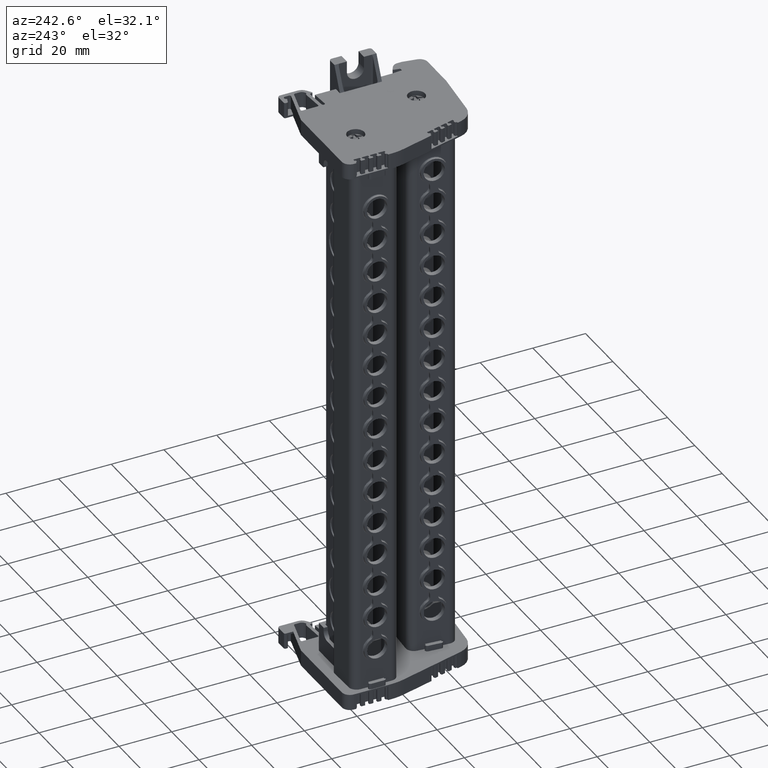
[diagram: clean part render]
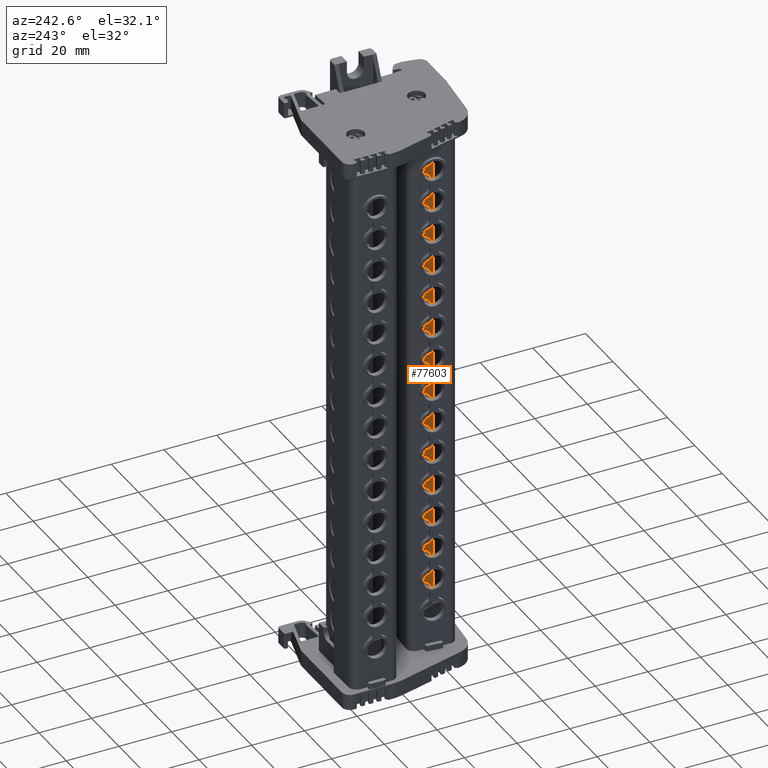
[diagram: same view with one face highlighted and labeled with its STEP entity id]
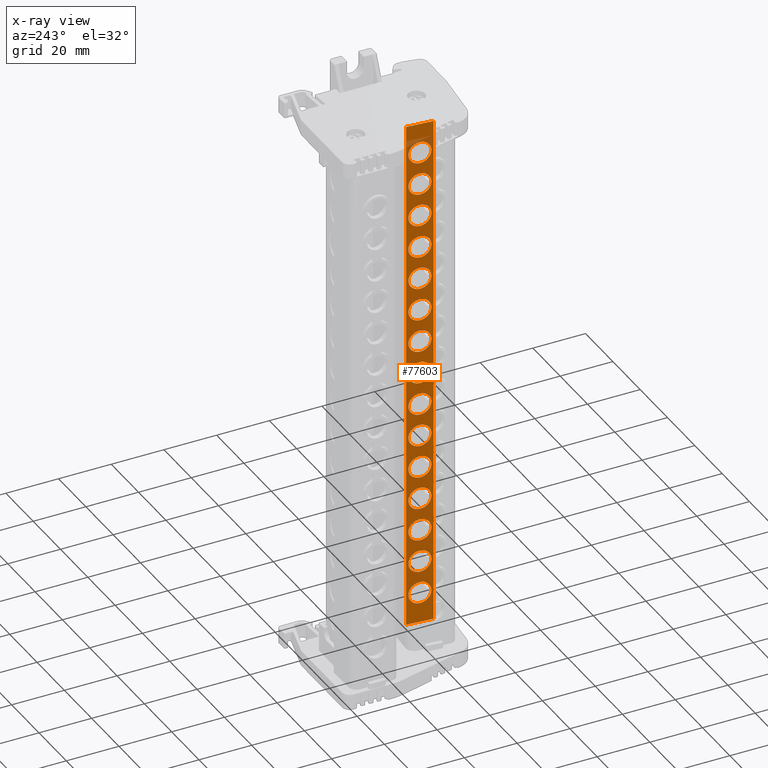
[diagram: x-ray of the same camera — body ghosted, the highlighted face saturated]
A machine part, auxiliary view. The second image highlights one B-rep face of the part: STEP entity #77603.
The next image is the same camera in x-ray: the body ghosted, the highlighted face saturated — about 3% of this face is hidden behind the body in this view.
In plain terms, the highlighted planar face has unit normal (0.9962, -0.0872, -0).
Its self-contained STEP definition (entity closure, byte-faithful):
#851 = DIRECTION ( 'NONE',  ( -0.9961946980917439900, 0.08715574274767584600, 8.512968526730301800E-014 ) ) ;
#858 = CARTESIAN_POINT ( 'NONE',  ( 1892.011210104553400, 769.9596501772075500, 158.6204558807427000 ) ) ;
#864 = DIRECTION ( 'NONE',  ( 0.08715574274769526100, 0.9961946980917422100, 0.0000000000000000000 ) ) ;
#869 = CARTESIAN_POINT ( 'NONE',  ( 1892.011210104553100, 769.9596501772080000, 146.1204558807425300 ) ) ;
#879 = DIRECTION ( 'NONE',  ( 0.08715574274774796900, 0.9961946980917377700, 0.0000000000000000000 ) ) ;
#891 = DIRECTION ( 'NONE',  ( -0.9961946980917370000, 0.08715574274775604600, 5.868139483058593900E-014 ) ) ;
#904 = DIRECTION ( 'NONE',  ( 0.08715574274764256700, 0.9961946980917468800, 0.0000000000000000000 ) ) ;
#909 = CARTESIAN_POINT ( 'NONE',  ( 1892.011210104551300, 769.9596501772096000, 121.1204558807426100 ) ) ;
#922 = DIRECTION ( 'NONE',  ( -0.9961946980917488800, 0.08715574274761968300, 2.991917881100227800E-014 ) ) ;
#953 = CARTESIAN_POINT ( 'NONE',  ( 1892.011210104554300, 769.9596501772067500, 171.1204558807428700 ) ) ;
#962 = DIRECTION ( 'NONE',  ( -0.9961946980917419900, 0.08715574274769873100, 8.397272247587224700E-014 ) ) ;
#965 = DIRECTION ( 'NONE',  ( 0.08715574274769526100, 0.9961946980917422100, 0.0000000000000000000 ) ) ;
#1645 = DIRECTION ( 'NONE',  ( 0.08715574274758757000, 0.9961946980917516500, 0.0000000000000000000 ) ) ;
#1655 = CARTESIAN_POINT ( 'NONE',  ( 1892.011210104550400, 769.9596501772101600, 108.6204558807428500 ) ) ;
#1659 = DIRECTION ( 'NONE',  ( -0.9961946980917513200, 0.08715574274759219100, 4.627851165704857700E-015 ) ) ;
#1732 = CARTESIAN_POINT ( 'NONE',  ( 1892.011210104548400, 769.9596501772125500, 58.62045588074259700 ) ) ;
#1768 = DIRECTION ( 'NONE',  ( -0.9961946980917422100, 0.08715574274769757900, 5.752443203915197600E-014 ) ) ;
#1771 = DIRECTION ( 'NONE',  ( 0.08715574274769757900, 0.9961946980917421000, 0.0000000000000000000 ) ) ;
#1776 = DIRECTION ( 'NONE',  ( -0.9961946980917444300, 0.08715574274767237700, 8.281575968444651300E-014 ) ) ;
#1779 = DIRECTION ( 'NONE',  ( 0.08715574274769297100, 0.9961946980917425500, 0.0000000000000000000 ) ) ;
#1781 = DIRECTION ( 'NONE',  ( -0.9961946980917439900, 0.08715574274767698400, 5.752443203915409600E-014 ) ) ;
#1787 = CARTESIAN_POINT ( 'NONE',  ( 1892.011210104547400, 769.9596501772132300, 46.12045588074286000 ) ) ;
#1791 = CARTESIAN_POINT ( 'NONE',  ( 1892.011210104549900, 769.9596501772109600, 96.12045588074269600 ) ) ;
#1798 = DIRECTION ( 'NONE',  ( 0.08715574274769526100, 0.9961946980917422100, 0.0000000000000000000 ) ) ;
#1850 = CARTESIAN_POINT ( 'NONE',  ( 1892.011210104546500, 769.9596501772147100, 21.12045588074250800 ) ) ;
#1851 = CARTESIAN_POINT ( 'NONE',  ( 1892.011210104547000, 769.9596501772139200, 33.62045588074268200 ) ) ;
#1852 = DIRECTION ( 'NONE',  ( -0.9961946980917396600, 0.08715574274772623600, 5.752443203915639300E-014 ) ) ;
#1853 = DIRECTION ( 'NONE',  ( 0.08715574274769989600, 0.9961946980917419900, 0.0000000000000000000 ) ) ;
#1859 = DIRECTION ( 'NONE',  ( -0.9961946980917444300, 0.08715574274767122500, 8.397272247587154000E-014 ) ) ;
#1860 = DIRECTION ( 'NONE',  ( 0.08715574274769526100, 0.9961946980917422100, 0.0000000000000000000 ) ) ;
#1862 = DIRECTION ( 'NONE',  ( -0.9961946980917442100, 0.08715574274767468000, 5.521050645629773000E-014 ) ) ;
#1871 = CARTESIAN_POINT ( 'NONE',  ( 1892.011210104549500, 769.9596501772113000, 83.62045588074249700 ) ) ;
#1873 = DIRECTION ( 'NONE',  ( 0.08715574274769297100, 0.9961946980917425500, 0.0000000000000000000 ) ) ;
#1898 = DIRECTION ( 'NONE',  ( 0.08715574274769757900, 0.9961946980917421000, 0.0000000000000000000 ) ) ;
#1909 = CARTESIAN_POINT ( 'NONE',  ( 1892.011210104548800, 769.9596501772121000, 71.12045588074276700 ) ) ;
#1925 = DIRECTION ( 'NONE',  ( -0.9961946980917442100, 0.08715574274767352900, 5.752443203915397000E-014 ) ) ;
#2022 = DIRECTION ( 'NONE',  ( -0.9961946980917444300, 0.08715574274767237700, 3.107614160242974100E-014 ) ) ;
#2036 = DIRECTION ( 'NONE',  ( -0.9961946980917398800, 0.08715574274772511200, 5.752443203915297300E-014 ) ) ;
#2042 = CARTESIAN_POINT ( 'NONE',  ( 1892.011210104554500, 769.9596501772061900, 183.6204558807426100 ) ) ;
#2044 = DIRECTION ( 'NONE',  ( 0.08715574274769526100, 0.9961946980917422100, 0.0000000000000000000 ) ) ;
#2054 = DIRECTION ( 'NONE',  ( -0.9961946980917442100, 0.08715574274767468000, 5.752443203915222800E-014 ) ) ;
#2065 = DIRECTION ( 'NONE',  ( 0.08715574274769526100, 0.9961946980917422100, 0.0000000000000000000 ) ) ;
#2087 = CARTESIAN_POINT ( 'NONE',  ( 1892.011210104555200, 769.9596501772055000, 196.1204558807427800 ) ) ;
#2096 = CARTESIAN_POINT ( 'NONE',  ( 1892.011210104551800, 769.9596501772088000, 133.6204558807427800 ) ) ;
#2100 = DIRECTION ( 'NONE',  ( 0.08715574274774796900, 0.9961946980917377700, 0.0000000000000000000 ) ) ;
#2280 = VERTEX_POINT ( 'NONE', #88000 ) ;
#2291 = VERTEX_POINT ( 'NONE', #87984 ) ;
#2691 = VERTEX_POINT ( 'NONE', #88177 ) ;
#2697 = VERTEX_POINT ( 'NONE', #88182 ) ;
#9658 = AXIS2_PLACEMENT_3D ( 'NONE', #15550, #15534, #15567 ) ;
#9664 = CIRCLE ( 'NONE', #9673, 4.181738299785991800 ) ;
#9673 = AXIS2_PLACEMENT_3D ( 'NONE', #14392, #14401, #14437 ) ;
#9681 = CIRCLE ( 'NONE', #9692, 4.181738299786011300 ) ;
#9685 = CIRCLE ( 'NONE', #9702, 4.181738299786030000 ) ;
#9687 = CIRCLE ( 'NONE', #9712, 4.181738299786030000 ) ;
#9692 = AXIS2_PLACEMENT_3D ( 'NONE', #14446, #14457, #14424 ) ;
#9702 = AXIS2_PLACEMENT_3D ( 'NONE', #15589, #15541, #15578 ) ;
#9705 = CIRCLE ( 'NONE', #9658, 4.181738299786121400 ) ;
#9709 = CIRCLE ( 'NONE', #9710, 4.181738299785789300 ) ;
#9710 = AXIS2_PLACEMENT_3D ( 'NONE', #15582, #15543, #15547 ) ;
#9712 = AXIS2_PLACEMENT_3D ( 'NONE', #15573, #15533, #15548 ) ;
#9721 = AXIS2_PLACEMENT_3D ( 'NONE', #14530, #14560, #14492 ) ;
#9732 = CIRCLE ( 'NONE', #9780, 4.181738299786121400 ) ;
#9733 = AXIS2_PLACEMENT_3D ( 'NONE', #14685, #14668, #14680 ) ;
#9736 = CIRCLE ( 'NONE', #9800, 4.181738299786011300 ) ;
#9749 = CIRCLE ( 'NONE', #9760, 4.181738299785900300 ) ;
#9760 = AXIS2_PLACEMENT_3D ( 'NONE', #14715, #14717, #14721 ) ;
#9769 = CIRCLE ( 'NONE', #9733, 4.181738299786011300 ) ;
#9780 = AXIS2_PLACEMENT_3D ( 'NONE', #14603, #14637, #14565 ) ;
#9794 = CIRCLE ( 'NONE', #9721, 4.181738299786083200 ) ;
#9800 = AXIS2_PLACEMENT_3D ( 'NONE', #14683, #14670, #14672 ) ;
#9808 = CIRCLE ( 'NONE', #9897, 4.181738299786011300 ) ;
#9812 = CIRCLE ( 'NONE', #9877, 4.181738299786011300 ) ;
#9823 = CIRCLE ( 'NONE', #9898, 4.181738299785900300 ) ;
#9877 = AXIS2_PLACEMENT_3D ( 'NONE', #14972, #14977, #14995 ) ;
#9897 = AXIS2_PLACEMENT_3D ( 'NONE', #14969, #15042, #15029 ) ;
#9898 = AXIS2_PLACEMENT_3D ( 'NONE', #14933, #14883, #14911 ) ;
#9971 = CIRCLE ( 'NONE', #10006, 4.181738299786011300 ) ;
#10000 = VECTOR ( 'NONE', #15190, 1000.000000000000000 ) ;
#10006 = AXIS2_PLACEMENT_3D ( 'NONE', #15068, #15073, #15124 ) ;
#14392 = CARTESIAN_POINT ( 'NONE',  ( 1892.011210104551300, 769.9596501772096000, 121.1204558807426100 ) ) ;
#14401 = DIRECTION ( 'NONE',  ( -0.9961946980917488800, 0.08715574274761968300, 2.991917881100227800E-014 ) ) ;
#14424 = DIRECTION ( 'NONE',  ( 0.08715574274769526100, 0.9961946980917422100, 0.0000000000000000000 ) ) ;
#14437 = DIRECTION ( 'NONE',  ( 0.08715574274764256700, 0.9961946980917468800, 0.0000000000000000000 ) ) ;
#14446 = CARTESIAN_POINT ( 'NONE',  ( 1892.011210104547400, 769.9596501772132300, 46.12045588074286000 ) ) ;
#14457 = DIRECTION ( 'NONE',  ( -0.9961946980917422100, 0.08715574274769757900, 5.752443203915197600E-014 ) ) ;
#14492 = DIRECTION ( 'NONE',  ( 0.08715574274758757000, 0.9961946980917516500, 0.0000000000000000000 ) ) ;
#14530 = CARTESIAN_POINT ( 'NONE',  ( 1892.011210104550400, 769.9596501772101600, 108.6204558807428500 ) ) ;
#14560 = DIRECTION ( 'NONE',  ( -0.9961946980917513200, 0.08715574274759219100, 4.627851165704857700E-015 ) ) ;
#14565 = DIRECTION ( 'NONE',  ( 0.08715574274769297100, 0.9961946980917425500, 0.0000000000000000000 ) ) ;
#14603 = CARTESIAN_POINT ( 'NONE',  ( 1892.011210104549500, 769.9596501772113000, 83.62045588074249700 ) ) ;
#14637 = DIRECTION ( 'NONE',  ( -0.9961946980917444300, 0.08715574274767122500, 8.397272247587154000E-014 ) ) ;
#14668 = DIRECTION ( 'NONE',  ( -0.9961946980917439900, 0.08715574274767584600, 8.512968526730301800E-014 ) ) ;
#14670 = DIRECTION ( 'NONE',  ( -0.9961946980917419900, 0.08715574274769873100, 8.397272247587224700E-014 ) ) ;
#14672 = DIRECTION ( 'NONE',  ( 0.08715574274769526100, 0.9961946980917422100, 0.0000000000000000000 ) ) ;
#14680 = DIRECTION ( 'NONE',  ( 0.08715574274769526100, 0.9961946980917422100, 0.0000000000000000000 ) ) ;
#14683 = CARTESIAN_POINT ( 'NONE',  ( 1892.011210104554300, 769.9596501772067500, 171.1204558807428700 ) ) ;
#14685 = CARTESIAN_POINT ( 'NONE',  ( 1892.011210104553400, 769.9596501772075500, 158.6204558807427000 ) ) ;
#14715 = CARTESIAN_POINT ( 'NONE',  ( 1892.011210104549900, 769.9596501772109600, 96.12045588074269600 ) ) ;
#14717 = DIRECTION ( 'NONE',  ( -0.9961946980917444300, 0.08715574274767237700, 8.281575968444651300E-014 ) ) ;
#14721 = DIRECTION ( 'NONE',  ( 0.08715574274769757900, 0.9961946980917421000, 0.0000000000000000000 ) ) ;
#14883 = DIRECTION ( 'NONE',  ( -0.9961946980917442100, 0.08715574274767352900, 5.752443203915397000E-014 ) ) ;
#14911 = DIRECTION ( 'NONE',  ( 0.08715574274769757900, 0.9961946980917421000, 0.0000000000000000000 ) ) ;
#14933 = CARTESIAN_POINT ( 'NONE',  ( 1892.011210104548800, 769.9596501772121000, 71.12045588074276700 ) ) ;
#14969 = CARTESIAN_POINT ( 'NONE',  ( 1892.011210104551800, 769.9596501772088000, 133.6204558807427800 ) ) ;
#14972 = CARTESIAN_POINT ( 'NONE',  ( 1892.011210104547000, 769.9596501772139200, 33.62045588074268200 ) ) ;
#14977 = DIRECTION ( 'NONE',  ( -0.9961946980917442100, 0.08715574274767468000, 5.521050645629773000E-014 ) ) ;
#14995 = DIRECTION ( 'NONE',  ( 0.08715574274769526100, 0.9961946980917422100, 0.0000000000000000000 ) ) ;
#15029 = DIRECTION ( 'NONE',  ( 0.08715574274769526100, 0.9961946980917422100, 0.0000000000000000000 ) ) ;
#15042 = DIRECTION ( 'NONE',  ( -0.9961946980917444300, 0.08715574274767237700, 3.107614160242974100E-014 ) ) ;
#15068 = CARTESIAN_POINT ( 'NONE',  ( 1892.011210104554500, 769.9596501772061900, 183.6204558807426100 ) ) ;
#15073 = DIRECTION ( 'NONE',  ( -0.9961946980917442100, 0.08715574274767468000, 5.752443203915222800E-014 ) ) ;
#15124 = DIRECTION ( 'NONE',  ( 0.08715574274769526100, 0.9961946980917422100, 0.0000000000000000000 ) ) ;
#15190 = DIRECTION ( 'NONE',  ( 0.08715574274764273400, 0.9961946980917468800, 0.0000000000000000000 ) ) ;
#15192 = CARTESIAN_POINT ( 'NONE',  ( 1892.447860375710700, 774.9505856146529400, 9.520455880742240100 ) ) ;
#15197 = LINE ( 'NONE', #15192, #10000 ) ;
#15533 = DIRECTION ( 'NONE',  ( -0.9961946980917398800, 0.08715574274772511200, 5.752443203915297300E-014 ) ) ;
#15534 = DIRECTION ( 'NONE',  ( -0.9961946980917439900, 0.08715574274767698400, 5.752443203915409600E-014 ) ) ;
#15541 = DIRECTION ( 'NONE',  ( -0.9961946980917370000, 0.08715574274775604600, 5.868139483058593900E-014 ) ) ;
#15543 = DIRECTION ( 'NONE',  ( -0.9961946980917396600, 0.08715574274772623600, 5.752443203915639300E-014 ) ) ;
#15547 = DIRECTION ( 'NONE',  ( 0.08715574274769989600, 0.9961946980917419900, 0.0000000000000000000 ) ) ;
#15548 = DIRECTION ( 'NONE',  ( 0.08715574274774796900, 0.9961946980917377700, 0.0000000000000000000 ) ) ;
#15550 = CARTESIAN_POINT ( 'NONE',  ( 1892.011210104548400, 769.9596501772125500, 58.62045588074259700 ) ) ;
#15567 = DIRECTION ( 'NONE',  ( 0.08715574274769297100, 0.9961946980917425500, 0.0000000000000000000 ) ) ;
#15573 = CARTESIAN_POINT ( 'NONE',  ( 1892.011210104555200, 769.9596501772055000, 196.1204558807427800 ) ) ;
#15578 = DIRECTION ( 'NONE',  ( 0.08715574274774796900, 0.9961946980917377700, 0.0000000000000000000 ) ) ;
#15582 = CARTESIAN_POINT ( 'NONE',  ( 1892.011210104546500, 769.9596501772147100, 21.12045588074250800 ) ) ;
#15589 = CARTESIAN_POINT ( 'NONE',  ( 1892.011210104553100, 769.9596501772080000, 146.1204558807425300 ) ) ;
#17755 = CARTESIAN_POINT ( 'NONE',  ( 1891.646747597052600, 765.7938246541600600, 33.62045588074268900 ) ) ;
#17759 = CARTESIAN_POINT ( 'NONE',  ( 1891.646747597056400, 765.7938246541559700, 108.6204558807428500 ) ) ;
#17767 = CARTESIAN_POINT ( 'NONE',  ( 1891.646747597051900, 765.7938246541608600, 21.12045588074251200 ) ) ;
#17776 = CARTESIAN_POINT ( 'NONE',  ( 1892.375672612041200, 774.1254757002684500, 21.12045588074250800 ) ) ;
#17777 = CARTESIAN_POINT ( 'NONE',  ( 1892.375672612041900, 774.1254757002675400, 46.12045588074286000 ) ) ;
#17780 = CARTESIAN_POINT ( 'NONE',  ( 1891.646747597054400, 765.7938246541582400, 71.12045588074278200 ) ) ;
#17782 = CARTESIAN_POINT ( 'NONE',  ( 1892.375672612042500, 774.1254757002664100, 58.62045588074259700 ) ) ;
#17790 = CARTESIAN_POINT ( 'NONE',  ( 1891.646747597053900, 765.7938246541584700, 58.62045588074260400 ) ) ;
#17808 = CARTESIAN_POINT ( 'NONE',  ( 1892.375672612044100, 774.1254757002640200, 108.6204558807428500 ) ) ;
#17813 = CARTESIAN_POINT ( 'NONE',  ( 1891.646747597055500, 765.7938246541569900, 96.12045588074269600 ) ) ;
#17815 = CARTESIAN_POINT ( 'NONE',  ( 1891.646747597060500, 765.7938246541514200, 196.1204558807427800 ) ) ;
#17820 = CARTESIAN_POINT ( 'NONE',  ( 1891.646747597060100, 765.7938246541521000, 183.6204558807426100 ) ) ;
#17822 = CARTESIAN_POINT ( 'NONE',  ( 1892.375672612048700, 774.1254757002607200, 171.1204558807428700 ) ) ;
#17828 = CARTESIAN_POINT ( 'NONE',  ( 1892.375672612048900, 774.1254757002602700, 183.6204558807426100 ) ) ;
#17830 = CARTESIAN_POINT ( 'NONE',  ( 1892.375672612044100, 774.1254757002649300, 96.12045588074269600 ) ) ;
#17833 = CARTESIAN_POINT ( 'NONE',  ( 1891.646747597057600, 765.7938246541548300, 133.6204558807427800 ) ) ;
#17836 = CARTESIAN_POINT ( 'NONE',  ( 1892.375672612041400, 774.1254757002680000, 33.62045588074268200 ) ) ;
#17840 = CARTESIAN_POINT ( 'NONE',  ( 1891.646747597058700, 765.7938246541540400, 146.1204558807425300 ) ) ;
#17843 = CARTESIAN_POINT ( 'NONE',  ( 1891.646747597055100, 765.7938246541572200, 83.62045588074251200 ) ) ;
#17845 = CARTESIAN_POINT ( 'NONE',  ( 1892.375672612047800, 774.1254757002616300, 158.6204558807427000 ) ) ;
#17846 = CARTESIAN_POINT ( 'NONE',  ( 1891.646747597059200, 765.7938246541535800, 158.6204558807427000 ) ) ;
#17853 = CARTESIAN_POINT ( 'NONE',  ( 1892.375672612047800, 774.1254757002617500, 146.1204558807425300 ) ) ;
#17856 = CARTESIAN_POINT ( 'NONE',  ( 1892.375672612045000, 774.1254757002633400, 121.1204558807426100 ) ) ;
#17872 = CARTESIAN_POINT ( 'NONE',  ( 1891.646747597053000, 765.7938246541592700, 46.12045588074286700 ) ) ;
#17880 = CARTESIAN_POINT ( 'NONE',  ( 1892.375672612043000, 774.1254757002662900, 71.12045588074276700 ) ) ;
#17889 = CARTESIAN_POINT ( 'NONE',  ( 1892.375672612043700, 774.1254757002651600, 83.62045588074248300 ) ) ;
#17891 = CARTESIAN_POINT ( 'NONE',  ( 1892.375672612045900, 774.1254757002624300, 133.6204558807427800 ) ) ;
#17956 = CARTESIAN_POINT ( 'NONE',  ( 1892.375672612049800, 774.1254757002597000, 196.1204558807427800 ) ) ;
#17958 = CARTESIAN_POINT ( 'NONE',  ( 1891.646747597057100, 765.7938246541556300, 121.1204558807426100 ) ) ;
#17971 = CARTESIAN_POINT ( 'NONE',  ( 1891.646747597060100, 765.7938246541527900, 171.1204558807428700 ) ) ;
#19429 = FACE_BOUND ( 'NONE', #83357, .T. ) ;
#19432 = FACE_BOUND ( 'NONE', #83368, .T. ) ;
#19434 = CARTESIAN_POINT ( 'NONE',  ( 1892.447860375712900, 774.9505856146527100, 52.56652525104543400 ) ) ;
#19436 = FACE_BOUND ( 'NONE', #83306, .T. ) ;
#19443 = PLANE ( 'NONE',  #24338 ) ;
#19451 = FACE_BOUND ( 'NONE', #79509, .T. ) ;
#19454 = FACE_BOUND ( 'NONE', #79538, .T. ) ;
#19456 = DIRECTION ( 'NONE',  ( 0.08715574274764273400, 0.9961946980917468800, 0.0000000000000000000 ) ) ;
#19458 = DIRECTION ( 'NONE',  ( 0.9961946980917468800, -0.08715574274764273400, -5.174051350537721800E-014 ) ) ;
#19485 = FACE_BOUND ( 'NONE', #79530, .T. ) ;
#19488 = FACE_BOUND ( 'NONE', #83298, .T. ) ;
#19493 = FACE_BOUND ( 'NONE', #79511, .T. ) ;
#19499 = FACE_BOUND ( 'NONE', #83348, .T. ) ;
#19537 = FACE_OUTER_BOUND ( 'NONE', #83349, .T. ) ;
#19540 = FACE_BOUND ( 'NONE', #83287, .T. ) ;
#19543 = FACE_BOUND ( 'NONE', #83309, .T. ) ;
#19547 = FACE_BOUND ( 'NONE', #83307, .T. ) ;
#19558 = FACE_BOUND ( 'NONE', #79481, .T. ) ;
#19564 = FACE_BOUND ( 'NONE', #79517, .T. ) ;
#19571 = FACE_BOUND ( 'NONE', #79523, .T. ) ;
#24338 = AXIS2_PLACEMENT_3D ( 'NONE', #19434, #19458, #19456 ) ;
#39646 = EDGE_CURVE ( 'NONE', #2280, #2691, #47983, .T. ) ;
#39649 = EDGE_CURVE ( 'NONE', #2697, #2291, #47998, .T. ) ;
#39657 = EDGE_CURVE ( 'NONE', #2697, #2691, #47985, .T. ) ;
#47973 = DIRECTION ( 'NONE',  ( 5.154362523060121200E-014, -4.509482884705591100E-015, 1.000000000000000000 ) ) ;
#47977 = CARTESIAN_POINT ( 'NONE',  ( 1892.446988818285500, 774.9406236676735500, 52.56652525104543400 ) ) ;
#47983 = LINE ( 'NONE', #47977, #64452 ) ;
#47985 = LINE ( 'NONE', #47987, #64469 ) ;
#47987 = CARTESIAN_POINT ( 'NONE',  ( 1891.575431390816400, 764.9786766867462100, 207.4986309168521600 ) ) ;
#47993 = CARTESIAN_POINT ( 'NONE',  ( 1891.575431390808500, 764.9786766867468900, 52.56652525104543400 ) ) ;
#47998 = LINE ( 'NONE', #47993, #64482 ) ;
#48008 = DIRECTION ( 'NONE',  ( -5.154362523060121200E-014, 4.509482884705591100E-015, -1.000000000000000000 ) ) ;
#48019 = DIRECTION ( 'NONE',  ( 0.08715574274664829300, 0.9961946980918338100, 0.0000000000000000000 ) ) ;
#53651 = VERTEX_POINT ( 'NONE', #17780 ) ;
#53654 = VERTEX_POINT ( 'NONE', #17776 ) ;
#53657 = VERTEX_POINT ( 'NONE', #17790 ) ;
#53666 = VERTEX_POINT ( 'NONE', #17755 ) ;
#53678 = VERTEX_POINT ( 'NONE', #17777 ) ;
#53686 = VERTEX_POINT ( 'NONE', #17759 ) ;
#53687 = VERTEX_POINT ( 'NONE', #17808 ) ;
#53693 = VERTEX_POINT ( 'NONE', #17782 ) ;
#53706 = VERTEX_POINT ( 'NONE', #17767 ) ;
#53727 = VERTEX_POINT ( 'NONE', #17836 ) ;
#53732 = VERTEX_POINT ( 'NONE', #17830 ) ;
#53739 = VERTEX_POINT ( 'NONE', #17820 ) ;
#53752 = VERTEX_POINT ( 'NONE', #17872 ) ;
#53753 = VERTEX_POINT ( 'NONE', #17843 ) ;
#53759 = VERTEX_POINT ( 'NONE', #17889 ) ;
#53760 = VERTEX_POINT ( 'NONE', #17880 ) ;
#53767 = VERTEX_POINT ( 'NONE', #17813 ) ;
#53776 = VERTEX_POINT ( 'NONE', #17840 ) ;
#53778 = VERTEX_POINT ( 'NONE', #17853 ) ;
#53779 = VERTEX_POINT ( 'NONE', #17822 ) ;
#53784 = VERTEX_POINT ( 'NONE', #17845 ) ;
#53786 = VERTEX_POINT ( 'NONE', #17833 ) ;
#53792 = VERTEX_POINT ( 'NONE', #17856 ) ;
#53800 = VERTEX_POINT ( 'NONE', #17815 ) ;
#53804 = VERTEX_POINT ( 'NONE', #17846 ) ;
#53823 = VERTEX_POINT ( 'NONE', #17828 ) ;
#53830 = VERTEX_POINT ( 'NONE', #17956 ) ;
#53833 = VERTEX_POINT ( 'NONE', #17958 ) ;
#53876 = VERTEX_POINT ( 'NONE', #17891 ) ;
#53880 = VERTEX_POINT ( 'NONE', #17971 ) ;
#56591 = ORIENTED_EDGE ( 'NONE', *, *, #67392, .F. ) ;
#60998 = ORIENTED_EDGE ( 'NONE', *, *, #67353, .F. ) ;
#61000 = ORIENTED_EDGE ( 'NONE', *, *, #39649, .F. ) ;
#61012 = ORIENTED_EDGE ( 'NONE', *, *, #72822, .F. ) ;
#61038 = ORIENTED_EDGE ( 'NONE', *, *, #67381, .F. ) ;
#61058 = ORIENTED_EDGE ( 'NONE', *, *, #72844, .F. ) ;
#61060 = ORIENTED_EDGE ( 'NONE', *, *, #72781, .F. ) ;
#61068 = ORIENTED_EDGE ( 'NONE', *, *, #39657, .T. ) ;
#61078 = ORIENTED_EDGE ( 'NONE', *, *, #67430, .F. ) ;
#61088 = ORIENTED_EDGE ( 'NONE', *, *, #67346, .F. ) ;
#61098 = ORIENTED_EDGE ( 'NONE', *, *, #67471, .F. ) ;
#61102 = ORIENTED_EDGE ( 'NONE', *, *, #39646, .F. ) ;
#61108 = ORIENTED_EDGE ( 'NONE', *, *, #67367, .F. ) ;
#61112 = ORIENTED_EDGE ( 'NONE', *, *, #72818, .F. ) ;
#61116 = ORIENTED_EDGE ( 'NONE', *, *, #67448, .F. ) ;
#61120 = ORIENTED_EDGE ( 'NONE', *, *, #72827, .F. ) ;
#61128 = ORIENTED_EDGE ( 'NONE', *, *, #67404, .F. ) ;
#61130 = ORIENTED_EDGE ( 'NONE', *, *, #72892, .F. ) ;
#61144 = ORIENTED_EDGE ( 'NONE', *, *, #67366, .F. ) ;
#61148 = ORIENTED_EDGE ( 'NONE', *, *, #67445, .F. ) ;
#61150 = ORIENTED_EDGE ( 'NONE', *, *, #72875, .F. ) ;
#61168 = ORIENTED_EDGE ( 'NONE', *, *, #72738, .F. ) ;
#61174 = ORIENTED_EDGE ( 'NONE', *, *, #72780, .F. ) ;
#61188 = ORIENTED_EDGE ( 'NONE', *, *, #72865, .F. ) ;
#61204 = ORIENTED_EDGE ( 'NONE', *, *, #67465, .F. ) ;
#61208 = ORIENTED_EDGE ( 'NONE', *, *, #67407, .F. ) ;
#61216 = ORIENTED_EDGE ( 'NONE', *, *, #72894, .F. ) ;
#61218 = ORIENTED_EDGE ( 'NONE', *, *, #72916, .F. ) ;
#61220 = ORIENTED_EDGE ( 'NONE', *, *, #67399, .F. ) ;
#61224 = ORIENTED_EDGE ( 'NONE', *, *, #67344, .F. ) ;
#61230 = ORIENTED_EDGE ( 'NONE', *, *, #72786, .F. ) ;
#61238 = ORIENTED_EDGE ( 'NONE', *, *, #72902, .F. ) ;
#61328 = ORIENTED_EDGE ( 'NONE', *, *, #72864, .F. ) ;
#61380 = ORIENTED_EDGE ( 'NONE', *, *, #67347, .F. ) ;
#64452 = VECTOR ( 'NONE', #47973, 1000.000000000000000 ) ;
#64469 = VECTOR ( 'NONE', #48019, 1000.000000000000100 ) ;
#64482 = VECTOR ( 'NONE', #48008, 1000.000000000000000 ) ;
#67344 = EDGE_CURVE ( 'NONE', #53778, #53776, #9685, .T. ) ;
#67346 = EDGE_CURVE ( 'NONE', #53693, #53657, #9705, .T. ) ;
#67347 = EDGE_CURVE ( 'NONE', #53830, #53800, #9687, .T. ) ;
#67353 = EDGE_CURVE ( 'NONE', #53654, #53706, #9709, .T. ) ;
#67366 = EDGE_CURVE ( 'NONE', #53792, #53833, #9664, .T. ) ;
#67367 = EDGE_CURVE ( 'NONE', #53678, #53752, #9681, .T. ) ;
#67381 = EDGE_CURVE ( 'NONE', #53687, #53686, #9794, .T. ) ;
#67392 = EDGE_CURVE ( 'NONE', #53759, #53753, #9732, .T. ) ;
#67399 = EDGE_CURVE ( 'NONE', #53784, #53804, #9769, .T. ) ;
#67404 = EDGE_CURVE ( 'NONE', #53779, #53880, #9736, .T. ) ;
#67407 = EDGE_CURVE ( 'NONE', #53732, #53767, #9749, .T. ) ;
#67430 = EDGE_CURVE ( 'NONE', #53760, #53651, #9823, .T. ) ;
#67445 = EDGE_CURVE ( 'NONE', #53876, #53786, #9808, .T. ) ;
#67448 = EDGE_CURVE ( 'NONE', #53727, #53666, #9812, .T. ) ;
#67465 = EDGE_CURVE ( 'NONE', #53823, #53739, #9971, .T. ) ;
#67471 = EDGE_CURVE ( 'NONE', #2291, #2280, #15197, .T. ) ;
#72738 = EDGE_CURVE ( 'NONE', #53686, #53687, #81990, .T. ) ;
#72780 = EDGE_CURVE ( 'NONE', #53657, #53693, #82027, .T. ) ;
#72781 = EDGE_CURVE ( 'NONE', #53752, #53678, #82030, .T. ) ;
#72786 = EDGE_CURVE ( 'NONE', #53767, #53732, #82108, .T. ) ;
#72818 = EDGE_CURVE ( 'NONE', #53666, #53727, #82082, .T. ) ;
#72822 = EDGE_CURVE ( 'NONE', #53706, #53654, #82122, .T. ) ;
#72827 = EDGE_CURVE ( 'NONE', #53753, #53759, #82133, .T. ) ;
#72844 = EDGE_CURVE ( 'NONE', #53651, #53760, #82154, .T. ) ;
#72864 = EDGE_CURVE ( 'NONE', #53800, #53830, #82200, .T. ) ;
#72865 = EDGE_CURVE ( 'NONE', #53786, #53876, #82180, .T. ) ;
#72875 = EDGE_CURVE ( 'NONE', #53739, #53823, #82223, .T. ) ;
#72892 = EDGE_CURVE ( 'NONE', #53776, #53778, #82238, .T. ) ;
#72894 = EDGE_CURVE ( 'NONE', #53804, #53784, #82248, .T. ) ;
#72902 = EDGE_CURVE ( 'NONE', #53833, #53792, #82298, .T. ) ;
#72916 = EDGE_CURVE ( 'NONE', #53880, #53779, #82290, .T. ) ;
#77603 = ADVANCED_FACE ( 'NONE', ( #19537, #19451, #19499, #19436, #19485, #19488, #19571, #19540, #19493, #19558, #19429, #19454, #19547, #19432, #19543, #19564 ), #19443, .F. ) ;
#79481 = EDGE_LOOP ( 'NONE', ( #61144, #61238 ) ) ;
#79509 = EDGE_LOOP ( 'NONE', ( #61108, #61060 ) ) ;
#79511 = EDGE_LOOP ( 'NONE', ( #61038, #61168 ) ) ;
#79517 = EDGE_LOOP ( 'NONE', ( #61380, #61328 ) ) ;
#79523 = EDGE_LOOP ( 'NONE', ( #56591, #61120 ) ) ;
#79530 = EDGE_LOOP ( 'NONE', ( #61088, #61174 ) ) ;
#79538 = EDGE_LOOP ( 'NONE', ( #61224, #61130 ) ) ;
#81989 = AXIS2_PLACEMENT_3D ( 'NONE', #1655, #1659, #1645 ) ;
#81990 = CIRCLE ( 'NONE', #81989, 4.181738299786083200 ) ;
#82027 = CIRCLE ( 'NONE', #82047, 4.181738299786121400 ) ;
#82030 = CIRCLE ( 'NONE', #82058, 4.181738299786011300 ) ;
#82047 = AXIS2_PLACEMENT_3D ( 'NONE', #1732, #1781, #1779 ) ;
#82058 = AXIS2_PLACEMENT_3D ( 'NONE', #1787, #1768, #1798 ) ;
#82081 = AXIS2_PLACEMENT_3D ( 'NONE', #1850, #1852, #1853 ) ;
#82082 = CIRCLE ( 'NONE', #82109, 4.181738299786011300 ) ;
#82100 = AXIS2_PLACEMENT_3D ( 'NONE', #1871, #1859, #1873 ) ;
#82105 = AXIS2_PLACEMENT_3D ( 'NONE', #1791, #1776, #1771 ) ;
#82108 = CIRCLE ( 'NONE', #82105, 4.181738299785900300 ) ;
#82109 = AXIS2_PLACEMENT_3D ( 'NONE', #1851, #1862, #1860 ) ;
#82122 = CIRCLE ( 'NONE', #82081, 4.181738299785789300 ) ;
#82133 = CIRCLE ( 'NONE', #82100, 4.181738299786121400 ) ;
#82154 = CIRCLE ( 'NONE', #82207, 4.181738299785900300 ) ;
#82180 = CIRCLE ( 'NONE', #82188, 4.181738299786011300 ) ;
#82185 = AXIS2_PLACEMENT_3D ( 'NONE', #2087, #2036, #2100 ) ;
#82188 = AXIS2_PLACEMENT_3D ( 'NONE', #2096, #2022, #2065 ) ;
#82200 = CIRCLE ( 'NONE', #82185, 4.181738299786030000 ) ;
#82207 = AXIS2_PLACEMENT_3D ( 'NONE', #1909, #1925, #1898 ) ;
#82209 = AXIS2_PLACEMENT_3D ( 'NONE', #858, #851, #864 ) ;
#82223 = CIRCLE ( 'NONE', #82241, 4.181738299786011300 ) ;
#82238 = CIRCLE ( 'NONE', #82247, 4.181738299786030000 ) ;
#82241 = AXIS2_PLACEMENT_3D ( 'NONE', #2042, #2054, #2044 ) ;
#82247 = AXIS2_PLACEMENT_3D ( 'NONE', #869, #891, #879 ) ;
#82248 = CIRCLE ( 'NONE', #82209, 4.181738299786011300 ) ;
#82264 = AXIS2_PLACEMENT_3D ( 'NONE', #953, #962, #965 ) ;
#82274 = AXIS2_PLACEMENT_3D ( 'NONE', #909, #922, #904 ) ;
#82290 = CIRCLE ( 'NONE', #82264, 4.181738299786011300 ) ;
#82298 = CIRCLE ( 'NONE', #82274, 4.181738299785991800 ) ;
#83287 = EDGE_LOOP ( 'NONE', ( #61208, #61230 ) ) ;
#83298 = EDGE_LOOP ( 'NONE', ( #61078, #61058 ) ) ;
#83306 = EDGE_LOOP ( 'NONE', ( #60998, #61012 ) ) ;
#83307 = EDGE_LOOP ( 'NONE', ( #61220, #61216 ) ) ;
#83309 = EDGE_LOOP ( 'NONE', ( #61204, #61150 ) ) ;
#83348 = EDGE_LOOP ( 'NONE', ( #61116, #61112 ) ) ;
#83349 = EDGE_LOOP ( 'NONE', ( #61102, #61098, #61000, #61068 ) ) ;
#83357 = EDGE_LOOP ( 'NONE', ( #61148, #61188 ) ) ;
#83368 = EDGE_LOOP ( 'NONE', ( #61128, #61218 ) ) ;
#87984 = CARTESIAN_POINT ( 'NONE',  ( 1891.575431390806400, 764.9786766867501900, 9.520455880742046500 ) ) ;
#88000 = CARTESIAN_POINT ( 'NONE',  ( 1892.446988818283200, 774.9406236676737800, 9.520455880742202800 ) ) ;
#88177 = CARTESIAN_POINT ( 'NONE',  ( 1892.446988818288000, 774.9406236676671800, 207.4986309168521600 ) ) ;
#88182 = CARTESIAN_POINT ( 'NONE',  ( 1891.575431390814900, 764.9786766867463300, 207.4986309168521600 ) ) ;